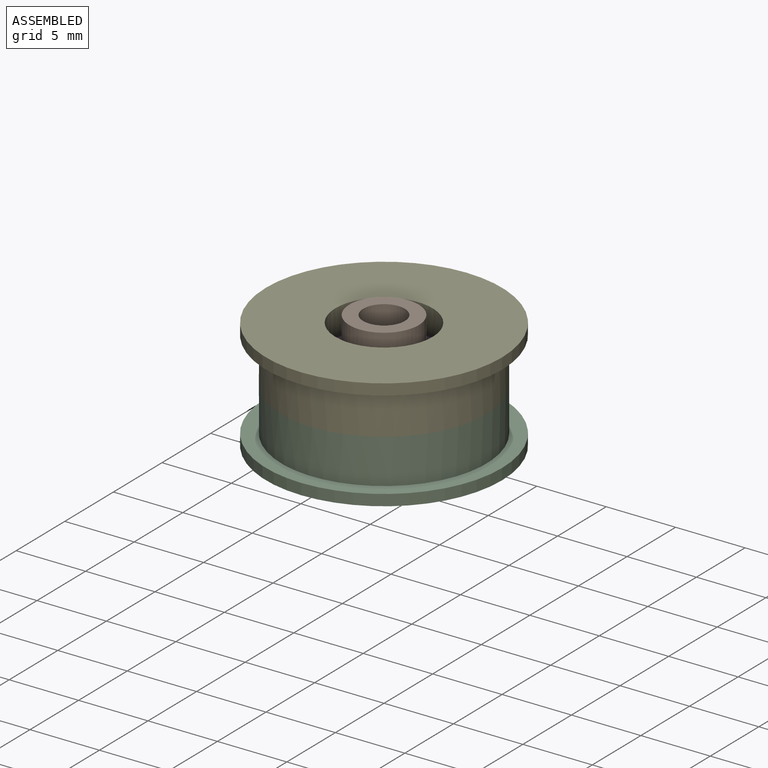
[diagram: assembled view]
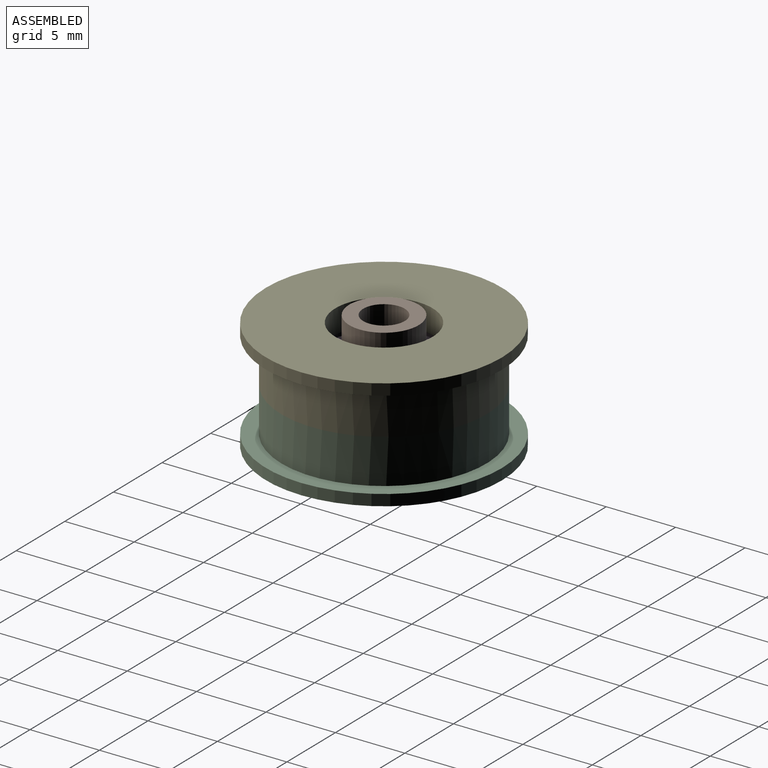
[diagram: assembled view, second angle]
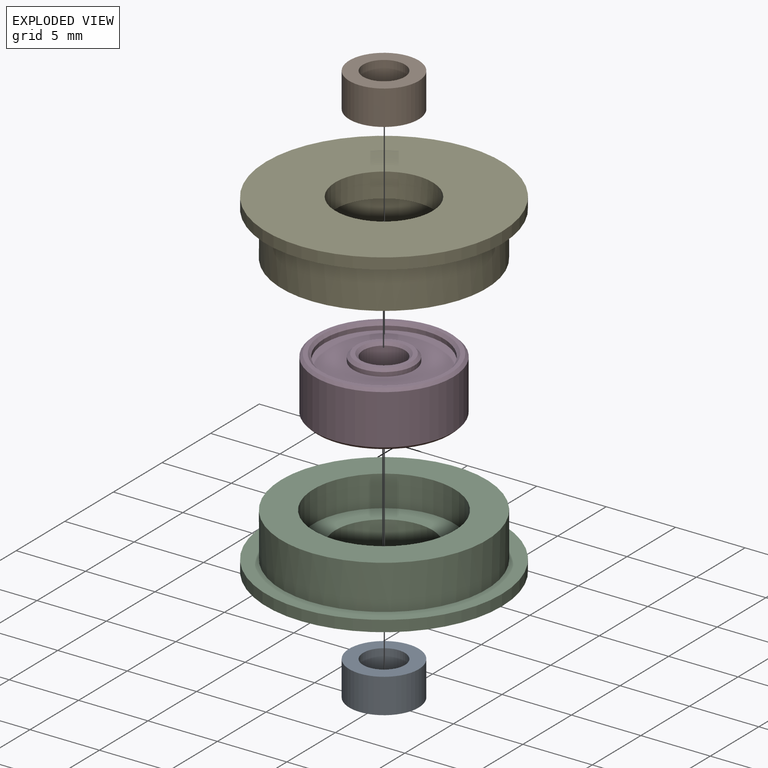
[diagram: exploded view]
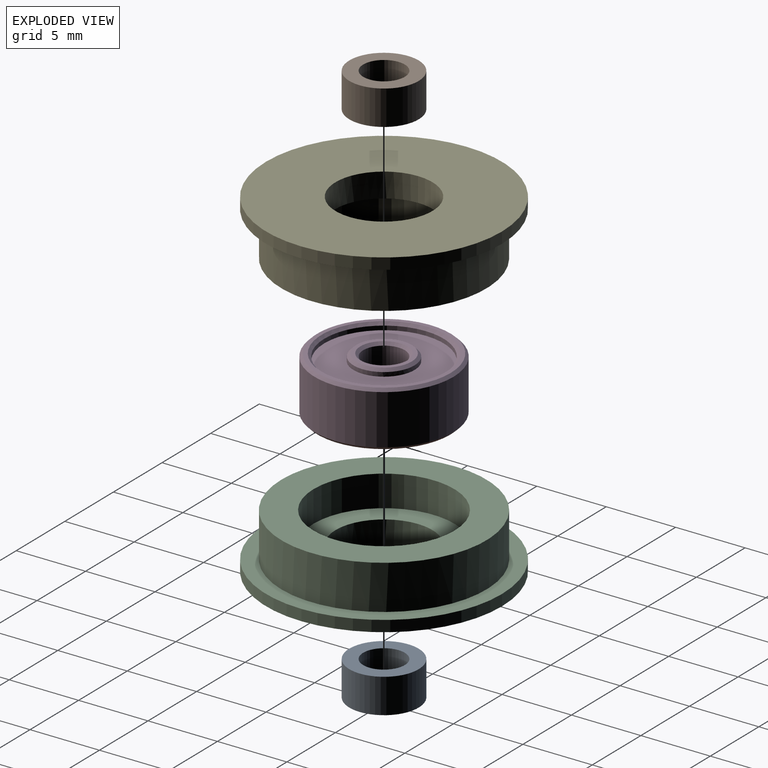
[diagram: exploded view, second angle]
ASSEMBLY  parts=5 mates=4
PART A: 4 faces, bbox 5x5x2.5 mm
  f0: cylinder r=1.5mm len=3mm, axis (0,0,-1), area 23.6mm2, adj f2,f3
  f1: cylinder r=2.5mm len=5mm, axis (0,0,-1), area 39.3mm2, adj f2,f3
  f2: plane 5x5mm, normal (0,0,1), area 12.6mm2, adj f0,f1
  f3: plane 5x5mm, normal (0,0,-1), area 12.6mm2, adj f0,f1
PART B: same geometry as A
PART C: 8 faces, bbox 17x17x4 mm
  f0: cylinder r=7.39mm len=14.78mm, axis (0,0,-1), area 148.5mm2, adj f4,f7
  f1: cylinder r=5.07mm len=10.15mm, axis (0,0,1), area 71.7mm2, adj f6,f7
  f2: cylinder r=3.5mm len=7mm, axis (0,0,-1), area 38.5mm2, adj f5,f6
  f3: cylinder r=8.5mm len=17mm, axis (0,0,-1), area 42.7mm2, adj f4,f5
  f4: plane 17x17mm, normal (0,0,1), area 55.5mm2, adj f0,f3
  f5: plane 17x17mm, normal (0,0,-1), area 188.5mm2, adj f2,f3
  f6: plane 10.15x10.15mm, normal (0,0,1), area 42.4mm2, adj f1,f2
  f7: plane 14.78x14.78mm, normal (0,0,1), area 90.5mm2, adj f0,f1
PART D: 20 faces, bbox 10x4x10 mm
  f0: cylinder r=4.3mm len=8.6mm, axis (0,1,0), area 8.1mm2, adj f11,f14
  f1: cylinder r=4.3mm len=8.6mm, axis (0,1,0), area 8.1mm2, adj f10,f18
  f2: cylinder r=5mm len=10mm, axis (0,1,0), area 113.1mm2, adj f15,f19
  f3: plane 9.6x9.6mm, normal (0,-1,0), area 8.8mm2, adj f18,f19
  f4: plane 9.6x9.6mm, normal (0,1,0), area 8.8mm2, adj f14,f15
  f5: cylinder r=2.2mm len=4.4mm, axis (0,1,0), area 4.1mm2, adj f11,f13
  f6: cylinder r=1.5mm len=3.6mm, axis (0,1,0), area 33.9mm2, adj f12,f16
  f7: cylinder r=2.2mm len=4.4mm, axis (0,1,0), area 4.1mm2, adj f10,f17
  f8: plane 4x4mm, normal (0,-1,0), area 3.5mm2, adj f16,f17
  f9: plane 4x4mm, normal (0,1,0), area 3.5mm2, adj f12,f13
  f10: plane 8.6x8.6mm, normal (0,-1,0), area 42.9mm2, adj f1,f7
  f11: plane 8.6x8.6mm, normal (0,1,0), area 42.9mm2, adj f0,f5
  f12: cone r=1.7mm half-angle=45deg, axis (0,1,0), area 2.8mm2, adj f6,f9
  f13: cone r=2.2mm half-angle=45deg, axis (0,-1,0), area 3.7mm2, adj f5,f9
  f14: cone r=4.5mm half-angle=45deg, axis (0,1,0), area 7.8mm2, adj f0,f4
  f15: cone r=5mm half-angle=45deg, axis (0,-1,0), area 8.7mm2, adj f2,f4
  f16: cone r=1.5mm half-angle=45deg, axis (0,-1,0), area 2.8mm2, adj f6,f8
  f17: cone r=2mm half-angle=45deg, axis (0,1,0), area 3.7mm2, adj f7,f8
  f18: cone r=4.3mm half-angle=45deg, axis (0,-1,0), area 7.8mm2, adj f1,f3
  f19: cone r=4.8mm half-angle=45deg, axis (0,1,0), area 8.7mm2, adj f2,f3
PART E: 8 faces, bbox 17x17x4 mm
  f0: cylinder r=8.5mm len=17mm, axis (0,0,-1), area 42.7mm2, adj f1,f3
  f1: plane 17x17mm, normal (0,0,-1), area 55.5mm2, adj f0,f2
  f2: cylinder r=7.39mm len=14.78mm, axis (0,0,-1), area 148.5mm2, adj f1,f7
  f3: plane 17x17mm, normal (0,0,1), area 188.5mm2, adj f0,f4
  f4: cylinder r=3.5mm len=7mm, axis (0,0,-1), area 38.5mm2, adj f3,f5
  f5: plane 10.15x10.15mm, normal (0,0,-1), area 42.4mm2, adj f4,f6
  f6: cylinder r=5.07mm len=10.15mm, axis (0,0,1), area 71.7mm2, adj f5,f7
  f7: plane 14.78x14.78mm, normal (0,0,-1), area 90.5mm2, adj f2,f6
PLACE A t=(0,0,-1.3)mm
PLACE B t=(0,0,5.2)mm
PLACE C at identity
PLACE D rot(axis=(1,0,0),90deg) t=(0,0,3.2)mm
PLACE E at identity
MATE fastened E.f4 <-> D.f0  axis (0,0,-1) through (0,0,5.45)mm
MATE fastened B.f1 <-> D.f0  axis (0,0,-1) through (0,0,5.2)mm
MATE fastened A.f1 <-> D.f0  axis (0,0,1) through (0,0,1.2)mm
MATE fastened D.f0 <-> C.f2  axis (0,0,-1) through (0,0,1.2)mm
